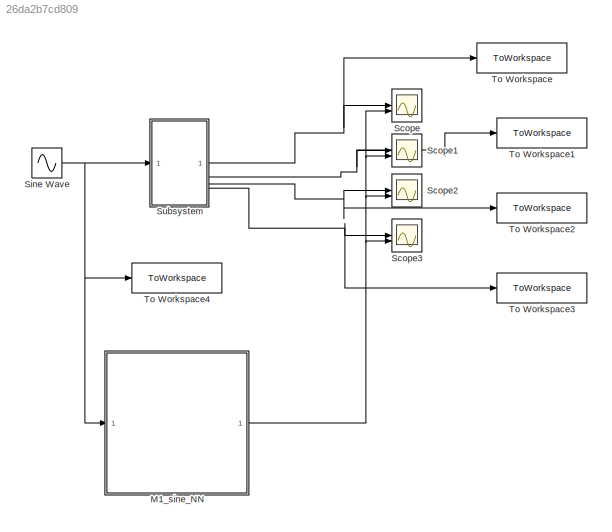
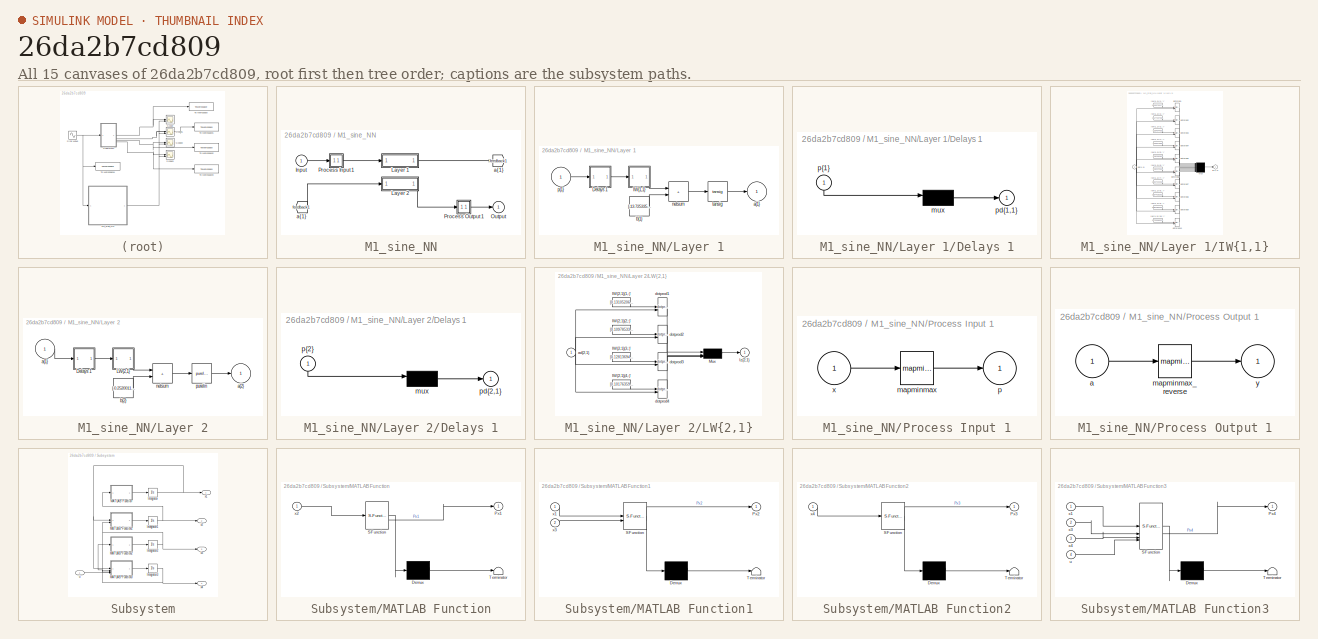
[diagram: thumbnail index - all 15 canvases of the model, root first then tree order]
MODEL slx_26da2b7cd809
KIND model
CONFIG AbsTol = auto
CONFIG EnableMultiTasking = off
CONFIG FixedStep = auto
CONFIG MaxStep = auto
CONFIG MinStep = auto
CONFIG RelTol = 1e-3
CONFIG SampleTimeConstraint = Unconstrained
CONFIG SolverName = VariableStepAuto
CONFIG StartTime = 0.0
CONFIG StopTime = 10.0
BLOCK [SubSystem] M1_sine_NN
BLOCK [From] M1_sine_NN/ a{1} 
  GotoTag = feedback1
BLOCK [Inport] M1_sine_NN/Input
  PortDimensions = 1
BLOCK [SubSystem] M1_sine_NN/Layer 1
BLOCK [SubSystem] M1_sine_NN/Layer 1/Delays 1
BLOCK [Mux] M1_sine_NN/Layer 1/Delays 1/mux
  Inputs = 1
BLOCK [Outport] M1_sine_NN/Layer 1/Delays 1/pd{1,1}
BLOCK [Inport] M1_sine_NN/Layer 1/Delays 1/p{1}
  NameLocation = left
  PortDimensions = 1
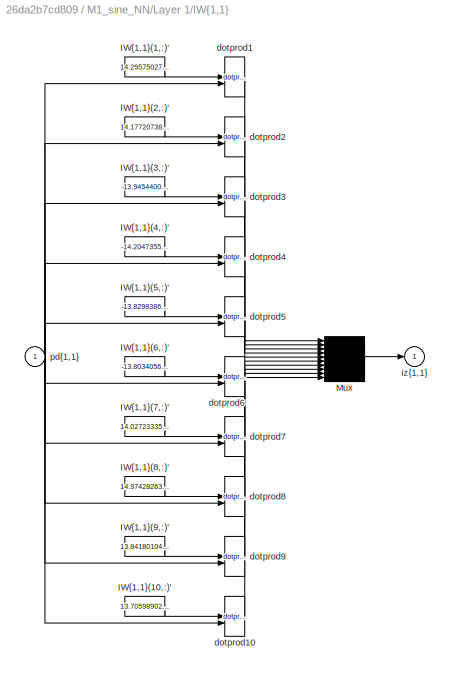
BLOCK [SubSystem] M1_sine_NN/Layer 1/IW{1,1}
BLOCK [Constant] M1_sine_NN/Layer 1/IW{1,1}/IW{1,1}(1,:)'
  Value = 14.29575027440044010518249706365168094635009765625
BLOCK [Constant] M1_sine_NN/Layer 1/IW{1,1}/IW{1,1}(10,:)'
  Value = 13.7059890265488686367234549834392964839935302734375
BLOCK [Constant] M1_sine_NN/Layer 1/IW{1,1}/IW{1,1}(2,:)'
  Value = 14.1772073895717287683737595216371119022369384765625
BLOCK [Constant] M1_sine_NN/Layer 1/IW{1,1}/IW{1,1}(3,:)'
  Value = -13.9454400667101108268752795993350446224212646484375
BLOCK [Constant] M1_sine_NN/Layer 1/IW{1,1}/IW{1,1}(4,:)'
  Value = -14.204735571328964027770780376158654689788818359375
BLOCK [Constant] M1_sine_NN/Layer 1/IW{1,1}/IW{1,1}(5,:)'
  Value = -13.8298386859462798526010374189354479312896728515625
BLOCK [Constant] M1_sine_NN/Layer 1/IW{1,1}/IW{1,1}(6,:)'
  Value = -13.8034056117240861993877842905931174755096435546875
BLOCK [Constant] M1_sine_NN/Layer 1/IW{1,1}/IW{1,1}(7,:)'
  Value = 14.0272333563755875474043932626955211162567138671875
BLOCK [Constant] M1_sine_NN/Layer 1/IW{1,1}/IW{1,1}(8,:)'
  Value = 14.9742826396785631004604510962963104248046875
BLOCK [Constant] M1_sine_NN/Layer 1/IW{1,1}/IW{1,1}(9,:)'
  Value = 13.841801048584738254021431203000247478485107421875
BLOCK [Mux] M1_sine_NN/Layer 1/IW{1,1}/Mux
  Inputs = 10
BLOCK [Reference] M1_sine_NN/Layer 1/IW{1,1}/dotprod1  REF=neural/Weight Functions/dotprod
  SourceBlock = neural/Weight Functions/dotprod
  SourceType = DOTPROD
BLOCK [Reference] M1_sine_NN/Layer 1/IW{1,1}/dotprod10  REF=neural/Weight Functions/dotprod
  SourceBlock = neural/Weight Functions/dotprod
  SourceType = DOTPROD
BLOCK [Reference] M1_sine_NN/Layer 1/IW{1,1}/dotprod2  REF=neural/Weight Functions/dotprod
  SourceBlock = neural/Weight Functions/dotprod
  SourceType = DOTPROD
BLOCK [Reference] M1_sine_NN/Layer 1/IW{1,1}/dotprod3  REF=neural/Weight Functions/dotprod
  SourceBlock = neural/Weight Functions/dotprod
  SourceType = DOTPROD
BLOCK [Reference] M1_sine_NN/Layer 1/IW{1,1}/dotprod4  REF=neural/Weight Functions/dotprod
  SourceBlock = neural/Weight Functions/dotprod
  SourceType = DOTPROD
BLOCK [Reference] M1_sine_NN/Layer 1/IW{1,1}/dotprod5  REF=neural/Weight Functions/dotprod
  SourceBlock = neural/Weight Functions/dotprod
  SourceType = DOTPROD
BLOCK [Reference] M1_sine_NN/Layer 1/IW{1,1}/dotprod6  REF=neural/Weight Functions/dotprod
  SourceBlock = neural/Weight Functions/dotprod
  SourceType = DOTPROD
BLOCK [Reference] M1_sine_NN/Layer 1/IW{1,1}/dotprod7  REF=neural/Weight Functions/dotprod
  SourceBlock = neural/Weight Functions/dotprod
  SourceType = DOTPROD
BLOCK [Reference] M1_sine_NN/Layer 1/IW{1,1}/dotprod8  REF=neural/Weight Functions/dotprod
  SourceBlock = neural/Weight Functions/dotprod
  SourceType = DOTPROD
BLOCK [Reference] M1_sine_NN/Layer 1/IW{1,1}/dotprod9  REF=neural/Weight Functions/dotprod
  SourceBlock = neural/Weight Functions/dotprod
  SourceType = DOTPROD
BLOCK [Outport] M1_sine_NN/Layer 1/IW{1,1}/iz{1,1}
BLOCK [Inport] M1_sine_NN/Layer 1/IW{1,1}/pd{1,1}
  PortDimensions = 1
BLOCK [Outport] M1_sine_NN/Layer 1/a{1}
  InitialOutput = [0;0;0;0;0;0;0;0;0;0]
BLOCK [Constant] M1_sine_NN/Layer 1/b{1}
  Value = [-13.725335592396415762550532235763967037200927734375;-11.343249143045564863996332860551774501800537109375;7.77125825545095150204133460647426545619964599609375;4.8603673528415090032694934052415192127227783203125;2.732322590989967547869810005067847669124603271484375;-1.3250366489771938649511184848961420357227325439453125;4.5132934496567340687533942400477826595306396484375;8.140267713981822694790935...<+131ch>
BLOCK [Sum] M1_sine_NN/Layer 1/netsum
  IconShape = rectangular
  InputSameDT = on
  Inputs = 2
  OutDataTypeStr = Inherit: Same as first input
  SaturateOnIntegerOverflow = on
BLOCK [Inport] M1_sine_NN/Layer 1/p{1}
  PortDimensions = 1
BLOCK [Reference] M1_sine_NN/Layer 1/tansig  REF=neural/Transfer Functions/tansig
  SourceBlock = neural/Transfer Functions/tansig
  SourceType = TANSIG
BLOCK [SubSystem] M1_sine_NN/Layer 2
BLOCK [SubSystem] M1_sine_NN/Layer 2/Delays 1
BLOCK [Mux] M1_sine_NN/Layer 2/Delays 1/mux
  Inputs = 1
BLOCK [Outport] M1_sine_NN/Layer 2/Delays 1/pd{2,1}
BLOCK [Inport] M1_sine_NN/Layer 2/Delays 1/p{2}
  NameLocation = left
  PortDimensions = 10
BLOCK [SubSystem] M1_sine_NN/Layer 2/LW{2,1}
BLOCK [Constant] M1_sine_NN/Layer 2/LW{2,1}/IW{2,1}(1,:)'
  Value = [0.131052066802997024819177340759779326617717742919921875;-0.033849550325203210665581110561106470413506031036376953125;-0.12201305471678257352774465971378958784043788909912109375;0.003528481039334001312379740511460113339126110076904296875;-0.09247670593668731731096244175205356441438198089599609375;-0.1098443227610021721840638520006905309855937957763671875;0.1286939962021087513477368702297098934650...<+181ch>
BLOCK [Constant] M1_sine_NN/Layer 2/LW{2,1}/IW{2,1}(2,:)'
  Value = [0.1097853316994576722276377722664619795978069305419921875;0.193342353493726359925375390957924537360668182373046875;-0.091506375924112759445705478356103412806987762451171875;-0.1543182403679912162441922873767907731235027313232421875;0.0303403285638588794681513860496124834753572940826416015625;-0.19983647073588162168533699514227919280529022216796875;-0.0346053697987688951842599749397777486592531204...<+187ch>
BLOCK [Constant] M1_sine_NN/Layer 2/LW{2,1}/IW{2,1}(3,:)'
  Value = [0.1281369479414179168852427892488776706159114837646484375;-0.0312284087066854766645551677584080607630312442779541015625;-0.1218529619077658165959832103908411227166652679443359375;0.00132432138269665544694220216115354560315608978271484375;-0.093168998406435055148477886177715845406055450439453125;-0.11011184761557966937939312401795177720487117767333984375;0.12793738862586540028232207077962812036275...<+180ch>
BLOCK [Constant] M1_sine_NN/Layer 2/LW{2,1}/IW{2,1}(4,:)'
  Value = [0.101763595786412974764090222379309125244617462158203125;0.193495357796275746498082526159123517572879791259765625;-0.09109320666222464613070997074828483164310455322265625;-0.1348210036598875005697806273019523359835147857666015625;0.01363219159425462477519541693027349538169801235198974609375;-0.1926281717007490013049419985691201873123645782470703125;-0.026774820326937644882070443941302073653787374...<+187ch>
BLOCK [Mux] M1_sine_NN/Layer 2/LW{2,1}/Mux
BLOCK [Inport] M1_sine_NN/Layer 2/LW{2,1}/ad{2,1}
  PortDimensions = 10
BLOCK [Reference] M1_sine_NN/Layer 2/LW{2,1}/dotprod1  REF=neural/Weight Functions/dotprod
  SourceBlock = neural/Weight Functions/dotprod
  SourceType = DOTPROD
BLOCK [Reference] M1_sine_NN/Layer 2/LW{2,1}/dotprod2  REF=neural/Weight Functions/dotprod
  SourceBlock = neural/Weight Functions/dotprod
  SourceType = DOTPROD
BLOCK [Reference] M1_sine_NN/Layer 2/LW{2,1}/dotprod3  REF=neural/Weight Functions/dotprod
  SourceBlock = neural/Weight Functions/dotprod
  SourceType = DOTPROD
BLOCK [Reference] M1_sine_NN/Layer 2/LW{2,1}/dotprod4  REF=neural/Weight Functions/dotprod
  SourceBlock = neural/Weight Functions/dotprod
  SourceType = DOTPROD
BLOCK [Outport] M1_sine_NN/Layer 2/LW{2,1}/lz{2,1}
BLOCK [Inport] M1_sine_NN/Layer 2/a{1} 
  PortDimensions = 10
BLOCK [Outport] M1_sine_NN/Layer 2/a{2}
  InitialOutput = [0;0;0;0]
BLOCK [Constant] M1_sine_NN/Layer 2/b{2}
  Value = [-0.252001164916880904254270490127964876592159271240234375;1.366032255996600941472252088715322315692901611328125;-0.278630718256470066851449018940911628305912017822265625;1.309249598137130821129403557279147207736968994140625]
BLOCK [Sum] M1_sine_NN/Layer 2/netsum
  IconShape = rectangular
  InputSameDT = on
  Inputs = 2
  OutDataTypeStr = Inherit: Same as first input
  SaturateOnIntegerOverflow = on
BLOCK [Reference] M1_sine_NN/Layer 2/purelin  REF=neural/Transfer Functions/purelin
  SourceBlock = neural/Transfer Functions/purelin
  SourceType = PURELIN
BLOCK [Outport] M1_sine_NN/Output
  InitialOutput = [0;0;0;0]
BLOCK [SubSystem] M1_sine_NN/Process Input 1
BLOCK [Reference] M1_sine_NN/Process Input 1/mapminmax  REF=neural/Processing Functions/mapminmax
  SourceBlock = neural/Processing Functions/mapminmax
  SourceType = MAPMINMAX Preprocess
BLOCK [Outport] M1_sine_NN/Process Input 1/p
  PortDimensions = 1
BLOCK [Inport] M1_sine_NN/Process Input 1/x
  PortDimensions = 1
BLOCK [SubSystem] M1_sine_NN/Process Output 1
BLOCK [Inport] M1_sine_NN/Process Output 1/a
  PortDimensions = 4
BLOCK [Reference] M1_sine_NN/Process Output 1/mapminmax_reverse  REF=neural/Processing Functions/mapminmax_reverse
  SourceBlock = neural/Processing Functions/mapminmax_reverse
  SourceType = MAPMINMAX Reverse Process
BLOCK [Outport] M1_sine_NN/Process Output 1/y
  PortDimensions = 4
BLOCK [Goto] M1_sine_NN/a{1}
  GotoTag = feedback1
BLOCK [Scope] Scope
  Floating = off
  NumInputPorts = 2
  ScopeSpecificationString = Simulink.scopes.TimeScopeBlockCfg('CurrentConfiguration', extmgr.ConfigurationSet(extmgr.Configuration('Core','General UI',true),extmgr.Configuration('Core','Source UI',true),extmgr.Configuration('Sources','WiredSimulink',true,'DataLoggingVariableName','ScopeData1'),extmgr.Configuration('Visuals','Time Domain',true,'SerializedDisplays',{struct('MinYLimReal','-0.44712','MaxYLimReal','0.43131','YLab...<+1430ch>
BLOCK [Scope] Scope1
  Floating = off
  NumInputPorts = 2
  ScopeSpecificationString = Simulink.scopes.TimeScopeBlockCfg('CurrentConfiguration', extmgr.ConfigurationSet(extmgr.Configuration('Core','General UI',true),extmgr.Configuration('Core','Source UI',true),extmgr.Configuration('Sources','WiredSimulink',true,'DataLoggingVariableName','ScopeData2'),extmgr.Configuration('Visuals','Time Domain',true,'SerializedDisplays',{struct('MinYLimReal','-0.6252','MaxYLimReal','0.40956','YLabe...<+1426ch>
BLOCK [Scope] Scope2
  Floating = off
  NumInputPorts = 2
  ScopeSpecificationString = Simulink.scopes.TimeScopeBlockCfg('CurrentConfiguration', extmgr.ConfigurationSet(extmgr.Configuration('Core','General UI',true),extmgr.Configuration('Core','Source UI',true),extmgr.Configuration('Sources','WiredSimulink',true,'DataLoggingVariableName','ScopeData3'),extmgr.Configuration('Visuals','Time Domain',true,'SerializedDisplays',{struct('MinYLimReal','-0.46146','MaxYLimReal','0.44409','YLab...<+1458ch>
BLOCK [Scope] Scope3
  Floating = off
  NumInputPorts = 2
  ScopeSpecificationString = Simulink.scopes.TimeScopeBlockCfg('CurrentConfiguration', extmgr.ConfigurationSet(extmgr.Configuration('Core','General UI',true),extmgr.Configuration('Core','Source UI',true),extmgr.Configuration('Sources','WiredSimulink',true),extmgr.Configuration('Visuals','Time Domain',true,'SerializedDisplays',{struct('MinYLimReal','-0.64437','MaxYLimReal','0.42527','YLabelReal','','MinYLimMag','0.00000','MaxY...<+1423ch>
BLOCK [Sin] Sine Wave
  SampleTime = 0
BLOCK [SubSystem] Subsystem
BLOCK [Integrator] Subsystem/Integrator
BLOCK [Integrator] Subsystem/Integrator1
BLOCK [Integrator] Subsystem/Integrator2
BLOCK [Integrator] Subsystem/Integrator3
BLOCK [SubSystem] Subsystem/MATLAB Function
  ErrorFcn = Stateflow.Translate.translate
  LibrarySourceBlock = simulink/User-Defined\nFunctions/MATLAB Function
  PermitHierarchicalResolution = ExplicitOnly
  SFBlockType = MATLAB Function
  TreatAsAtomicUnit = on
BLOCK [Demux] Subsystem/MATLAB Function/ Demux 
  Outputs = 1
BLOCK [S-Function] Subsystem/MATLAB Function/ SFunction 
  EnableBusSupport = on
  FunctionName = sf_sfun
  PortCounts = [1 2]
  SFcnIsStateOwnerBlock = off
  SFunctionDeploymentMode = off
  Tag = Stateflow S-Function 2
BLOCK [Terminator] Subsystem/MATLAB Function/ Terminator 
BLOCK [Outport] Subsystem/MATLAB Function/Px1
BLOCK [Inport] Subsystem/MATLAB Function/x2
BLOCK [SubSystem] Subsystem/MATLAB Function1
  ErrorFcn = Stateflow.Translate.translate
  LibrarySourceBlock = simulink/User-Defined\nFunctions/MATLAB Function
  PermitHierarchicalResolution = ExplicitOnly
  SFBlockType = MATLAB Function
  TreatAsAtomicUnit = on
BLOCK [Demux] Subsystem/MATLAB Function1/ Demux 
  Outputs = 1
BLOCK [S-Function] Subsystem/MATLAB Function1/ SFunction 
  EnableBusSupport = on
  FunctionName = sf_sfun
  PortCounts = [2 2]
  SFcnIsStateOwnerBlock = off
  SFunctionDeploymentMode = off
  Tag = Stateflow S-Function 1
BLOCK [Terminator] Subsystem/MATLAB Function1/ Terminator 
BLOCK [Outport] Subsystem/MATLAB Function1/Px2
BLOCK [Inport] Subsystem/MATLAB Function1/x1
BLOCK [Inport] Subsystem/MATLAB Function1/x3
  Port = 2
BLOCK [SubSystem] Subsystem/MATLAB Function2
  ErrorFcn = Stateflow.Translate.translate
  LibrarySourceBlock = simulink/User-Defined\nFunctions/MATLAB Function
  PermitHierarchicalResolution = ExplicitOnly
  SFBlockType = MATLAB Function
  TreatAsAtomicUnit = on
BLOCK [Demux] Subsystem/MATLAB Function2/ Demux 
  Outputs = 1
BLOCK [S-Function] Subsystem/MATLAB Function2/ SFunction 
  EnableBusSupport = on
  FunctionName = sf_sfun
  PortCounts = [1 2]
  SFcnIsStateOwnerBlock = off
  SFunctionDeploymentMode = off
  Tag = Stateflow S-Function 3
BLOCK [Terminator] Subsystem/MATLAB Function2/ Terminator 
BLOCK [Outport] Subsystem/MATLAB Function2/Px3
BLOCK [Inport] Subsystem/MATLAB Function2/x4
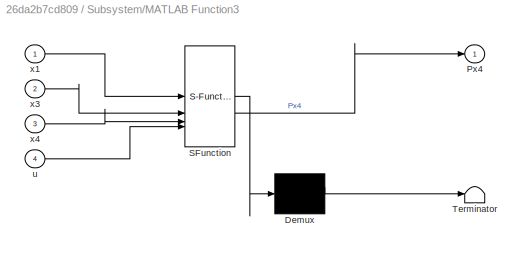
BLOCK [SubSystem] Subsystem/MATLAB Function3
  ErrorFcn = Stateflow.Translate.translate
  LibrarySourceBlock = simulink/User-Defined\nFunctions/MATLAB Function
  PermitHierarchicalResolution = ExplicitOnly
  SFBlockType = MATLAB Function
  TreatAsAtomicUnit = on
BLOCK [Demux] Subsystem/MATLAB Function3/ Demux 
  Outputs = 1
BLOCK [S-Function] Subsystem/MATLAB Function3/ SFunction 
  EnableBusSupport = on
  FunctionName = sf_sfun
  PortCounts = [4 2]
  SFcnIsStateOwnerBlock = off
  SFunctionDeploymentMode = off
  Tag = Stateflow S-Function 4
BLOCK [Terminator] Subsystem/MATLAB Function3/ Terminator 
BLOCK [Outport] Subsystem/MATLAB Function3/Px4
BLOCK [Inport] Subsystem/MATLAB Function3/u
  Port = 4
BLOCK [Inport] Subsystem/MATLAB Function3/x1
BLOCK [Inport] Subsystem/MATLAB Function3/x3
  Port = 2
BLOCK [Inport] Subsystem/MATLAB Function3/x4
  Port = 3
BLOCK [Inport] Subsystem/u
BLOCK [Outport] Subsystem/x1
BLOCK [Outport] Subsystem/x2
  Port = 2
BLOCK [Outport] Subsystem/x3
  Port = 3
BLOCK [Outport] Subsystem/x4
  Port = 4
BLOCK [ToWorkspace] To Workspace
  FixptAsFi = on
  MaxDataPoints = inf
  SampleTime = -1
  SaveFormat = Structure With Time
  VariableName = x1
BLOCK [ToWorkspace] To Workspace1
  FixptAsFi = on
  MaxDataPoints = inf
  SampleTime = -1
  SaveFormat = Structure With Time
  VariableName = x2
BLOCK [ToWorkspace] To Workspace2
  FixptAsFi = on
  MaxDataPoints = inf
  SampleTime = -1
  SaveFormat = Structure With Time
  VariableName = x3
BLOCK [ToWorkspace] To Workspace3
  FixptAsFi = on
  MaxDataPoints = inf
  SampleTime = -1
  SaveFormat = Structure With Time
  VariableName = x4
BLOCK [ToWorkspace] To Workspace4
  FixptAsFi = on
  MaxDataPoints = inf
  SampleTime = -1
  SaveFormat = Structure With Time
  VariableName = u
LINE M1_sine_NN/ a{1} :1 -> M1_sine_NN/Layer 2:1
LINE M1_sine_NN/Input:1 -> M1_sine_NN/Process Input 1:1
LINE M1_sine_NN/Layer 1/Delays 1/mux:1 -> M1_sine_NN/Layer 1/Delays 1/pd{1,1}:1
LINE M1_sine_NN/Layer 1/Delays 1/p{1}:1 -> M1_sine_NN/Layer 1/Delays 1/mux:1
LINE M1_sine_NN/Layer 1/Delays 1:1 -> M1_sine_NN/Layer 1/IW{1,1}:1
LINE M1_sine_NN/Layer 1/IW{1,1}/IW{1,1}(1,:)':1 -> M1_sine_NN/Layer 1/IW{1,1}/dotprod1:1
LINE M1_sine_NN/Layer 1/IW{1,1}/IW{1,1}(10,:)':1 -> M1_sine_NN/Layer 1/IW{1,1}/dotprod10:1
LINE M1_sine_NN/Layer 1/IW{1,1}/IW{1,1}(2,:)':1 -> M1_sine_NN/Layer 1/IW{1,1}/dotprod2:1
LINE M1_sine_NN/Layer 1/IW{1,1}/IW{1,1}(3,:)':1 -> M1_sine_NN/Layer 1/IW{1,1}/dotprod3:1
LINE M1_sine_NN/Layer 1/IW{1,1}/IW{1,1}(4,:)':1 -> M1_sine_NN/Layer 1/IW{1,1}/dotprod4:1
LINE M1_sine_NN/Layer 1/IW{1,1}/IW{1,1}(5,:)':1 -> M1_sine_NN/Layer 1/IW{1,1}/dotprod5:1
LINE M1_sine_NN/Layer 1/IW{1,1}/IW{1,1}(6,:)':1 -> M1_sine_NN/Layer 1/IW{1,1}/dotprod6:1
LINE M1_sine_NN/Layer 1/IW{1,1}/IW{1,1}(7,:)':1 -> M1_sine_NN/Layer 1/IW{1,1}/dotprod7:1
LINE M1_sine_NN/Layer 1/IW{1,1}/IW{1,1}(8,:)':1 -> M1_sine_NN/Layer 1/IW{1,1}/dotprod8:1
LINE M1_sine_NN/Layer 1/IW{1,1}/IW{1,1}(9,:)':1 -> M1_sine_NN/Layer 1/IW{1,1}/dotprod9:1
LINE M1_sine_NN/Layer 1/IW{1,1}/Mux:1 -> M1_sine_NN/Layer 1/IW{1,1}/iz{1,1}:1
LINE M1_sine_NN/Layer 1/IW{1,1}/dotprod10:1 -> M1_sine_NN/Layer 1/IW{1,1}/Mux:10
LINE M1_sine_NN/Layer 1/IW{1,1}/dotprod1:1 -> M1_sine_NN/Layer 1/IW{1,1}/Mux:1
LINE M1_sine_NN/Layer 1/IW{1,1}/dotprod2:1 -> M1_sine_NN/Layer 1/IW{1,1}/Mux:2
LINE M1_sine_NN/Layer 1/IW{1,1}/dotprod3:1 -> M1_sine_NN/Layer 1/IW{1,1}/Mux:3
LINE M1_sine_NN/Layer 1/IW{1,1}/dotprod4:1 -> M1_sine_NN/Layer 1/IW{1,1}/Mux:4
LINE M1_sine_NN/Layer 1/IW{1,1}/dotprod5:1 -> M1_sine_NN/Layer 1/IW{1,1}/Mux:5
LINE M1_sine_NN/Layer 1/IW{1,1}/dotprod6:1 -> M1_sine_NN/Layer 1/IW{1,1}/Mux:6
LINE M1_sine_NN/Layer 1/IW{1,1}/dotprod7:1 -> M1_sine_NN/Layer 1/IW{1,1}/Mux:7
LINE M1_sine_NN/Layer 1/IW{1,1}/dotprod8:1 -> M1_sine_NN/Layer 1/IW{1,1}/Mux:8
LINE M1_sine_NN/Layer 1/IW{1,1}/dotprod9:1 -> M1_sine_NN/Layer 1/IW{1,1}/Mux:9
NET M1_sine_NN/Layer 1/IW{1,1}/pd{1,1}:1 -> M1_sine_NN/Layer 1/IW{1,1}/dotprod10:2, M1_sine_NN/Layer 1/IW{1,1}/dotprod1:2, M1_sine_NN/Layer 1/IW{1,1}/dotprod2:2, M1_sine_NN/Layer 1/IW{1,1}/dotprod3:2, M1_sine_NN/Layer 1/IW{1,1}/dotprod4:2, M1_sine_NN/Layer 1/IW{1,1}/dotprod5:2, M1_sine_NN/Layer 1/IW{1,1}/dotprod6:2, M1_sine_NN/Layer 1/IW{1,1}/dotprod7:2, M1_sine_NN/Layer 1/IW{1,1}/dotprod8:2, M1_sine_NN/Layer 1/IW{1,1}/dotprod9:2
LINE M1_sine_NN/Layer 1/IW{1,1}:1 -> M1_sine_NN/Layer 1/netsum:1
LINE M1_sine_NN/Layer 1/b{1}:1 -> M1_sine_NN/Layer 1/netsum:2
LINE M1_sine_NN/Layer 1/netsum:1 -> M1_sine_NN/Layer 1/tansig:1
LINE M1_sine_NN/Layer 1/p{1}:1 -> M1_sine_NN/Layer 1/Delays 1:1
LINE M1_sine_NN/Layer 1/tansig:1 -> M1_sine_NN/Layer 1/a{1}:1
LINE M1_sine_NN/Layer 1:1 -> M1_sine_NN/a{1}:1
LINE M1_sine_NN/Layer 2/Delays 1/mux:1 -> M1_sine_NN/Layer 2/Delays 1/pd{2,1}:1
LINE M1_sine_NN/Layer 2/Delays 1/p{2}:1 -> M1_sine_NN/Layer 2/Delays 1/mux:1
LINE M1_sine_NN/Layer 2/Delays 1:1 -> M1_sine_NN/Layer 2/LW{2,1}:1
LINE M1_sine_NN/Layer 2/LW{2,1}/IW{2,1}(1,:)':1 -> M1_sine_NN/Layer 2/LW{2,1}/dotprod1:1
LINE M1_sine_NN/Layer 2/LW{2,1}/IW{2,1}(2,:)':1 -> M1_sine_NN/Layer 2/LW{2,1}/dotprod2:1
LINE M1_sine_NN/Layer 2/LW{2,1}/IW{2,1}(3,:)':1 -> M1_sine_NN/Layer 2/LW{2,1}/dotprod3:1
LINE M1_sine_NN/Layer 2/LW{2,1}/IW{2,1}(4,:)':1 -> M1_sine_NN/Layer 2/LW{2,1}/dotprod4:1
LINE M1_sine_NN/Layer 2/LW{2,1}/Mux:1 -> M1_sine_NN/Layer 2/LW{2,1}/lz{2,1}:1
NET M1_sine_NN/Layer 2/LW{2,1}/ad{2,1}:1 -> M1_sine_NN/Layer 2/LW{2,1}/dotprod1:2, M1_sine_NN/Layer 2/LW{2,1}/dotprod2:2, M1_sine_NN/Layer 2/LW{2,1}/dotprod3:2, M1_sine_NN/Layer 2/LW{2,1}/dotprod4:2
LINE M1_sine_NN/Layer 2/LW{2,1}/dotprod1:1 -> M1_sine_NN/Layer 2/LW{2,1}/Mux:1
LINE M1_sine_NN/Layer 2/LW{2,1}/dotprod2:1 -> M1_sine_NN/Layer 2/LW{2,1}/Mux:2
LINE M1_sine_NN/Layer 2/LW{2,1}/dotprod3:1 -> M1_sine_NN/Layer 2/LW{2,1}/Mux:3
LINE M1_sine_NN/Layer 2/LW{2,1}/dotprod4:1 -> M1_sine_NN/Layer 2/LW{2,1}/Mux:4
LINE M1_sine_NN/Layer 2/LW{2,1}:1 -> M1_sine_NN/Layer 2/netsum:1
LINE M1_sine_NN/Layer 2/a{1} :1 -> M1_sine_NN/Layer 2/Delays 1:1
LINE M1_sine_NN/Layer 2/b{2}:1 -> M1_sine_NN/Layer 2/netsum:2
LINE M1_sine_NN/Layer 2/netsum:1 -> M1_sine_NN/Layer 2/purelin:1
LINE M1_sine_NN/Layer 2/purelin:1 -> M1_sine_NN/Layer 2/a{2}:1
LINE M1_sine_NN/Layer 2:1 -> M1_sine_NN/Process Output 1:1
LINE M1_sine_NN/Process Input 1/mapminmax:1 -> M1_sine_NN/Process Input 1/p:1
LINE M1_sine_NN/Process Input 1/x:1 -> M1_sine_NN/Process Input 1/mapminmax:1
LINE M1_sine_NN/Process Input 1:1 -> M1_sine_NN/Layer 1:1
LINE M1_sine_NN/Process Output 1/a:1 -> M1_sine_NN/Process Output 1/mapminmax_reverse:1
LINE M1_sine_NN/Process Output 1/mapminmax_reverse:1 -> M1_sine_NN/Process Output 1/y:1
LINE M1_sine_NN/Process Output 1:1 -> M1_sine_NN/Output:1
NET M1_sine_NN:1 -> Scope1:2, Scope2:2, Scope3:2, Scope:2
NET Sine Wave:1 -> M1_sine_NN:1, Subsystem:1, To Workspace4:1
NET Subsystem/Integrator1:1 -> Subsystem/MATLAB Function:1, Subsystem/x2:1
NET Subsystem/Integrator2:1 -> Subsystem/MATLAB Function1:2, Subsystem/MATLAB Function3:2, Subsystem/x3:1
NET Subsystem/Integrator3:1 -> Subsystem/MATLAB Function2:1, Subsystem/MATLAB Function3:3, Subsystem/x4:1
NET Subsystem/Integrator:1 -> Subsystem/MATLAB Function1:1, Subsystem/MATLAB Function3:1, Subsystem/x1:1
LINE Subsystem/MATLAB Function1:1 -> Subsystem/Integrator1:1
LINE Subsystem/MATLAB Function2:1 -> Subsystem/Integrator2:1
LINE Subsystem/MATLAB Function3:1 -> Subsystem/Integrator3:1
LINE Subsystem/MATLAB Function:1 -> Subsystem/Integrator:1
LINE Subsystem/u:1 -> Subsystem/MATLAB Function3:4
NET Subsystem:1 -> Scope:1, To Workspace:1
NET Subsystem:2 -> Scope1:1, To Workspace1:1
NET Subsystem:3 -> Scope2:1, To Workspace2:1
NET Subsystem:4 -> Scope3:1, To Workspace3:1
note: NET lines group one-source signal fan-out (src -> all destinations, sorted); 1:1 wires keep LINE
CHART Subsystem/MATLAB Function1 states=1 transitions=1
  STATE_LABEL 'eML_blk_kernel()'
  STATE_LABEL 'SCRIPT:\nfunction Px2 = fcn(x1,x3)\nmgl = 5;\nj1 = 1;\nke = 100;\n\nPx2 = -((mgl)/j1)*sin(x1)-(ke/j1)*(x1-x3);\n'
CHART Subsystem/MATLAB Function states=1 transitions=1
  STATE_LABEL 'eML_blk_kernel()'
  STATE_LABEL 'SCRIPT:\nfunction Px1 = fcn(x2)\n\nPx1 = x2;\n'
CHART Subsystem/MATLAB Function2 states=1 transitions=1
  STATE_LABEL 'eML_blk_kernel()'
  STATE_LABEL 'SCRIPT:\nfunction Px3 = fcn(x4)\n\n\nPx3 = x4;\n'
CHART Subsystem/MATLAB Function3 states=1 transitions=1
  STATE_LABEL 'eML_blk_kernel()'
  STATE_LABEL 'SCRIPT:\nfunction Px4 = fcn(x1,x3,x4,u)\nmu = 0.1;\njr = 0.3;\nke = 100;\n\nPx4 = (ke/jr)*(x1-x3)-(mu/jr)*x4+(1/jr)*u;\n'
CHART  states=0 transitions=0
CHART  states=0 transitions=0
CHART  states=0 transitions=0
CHART  states=0 transitions=0
